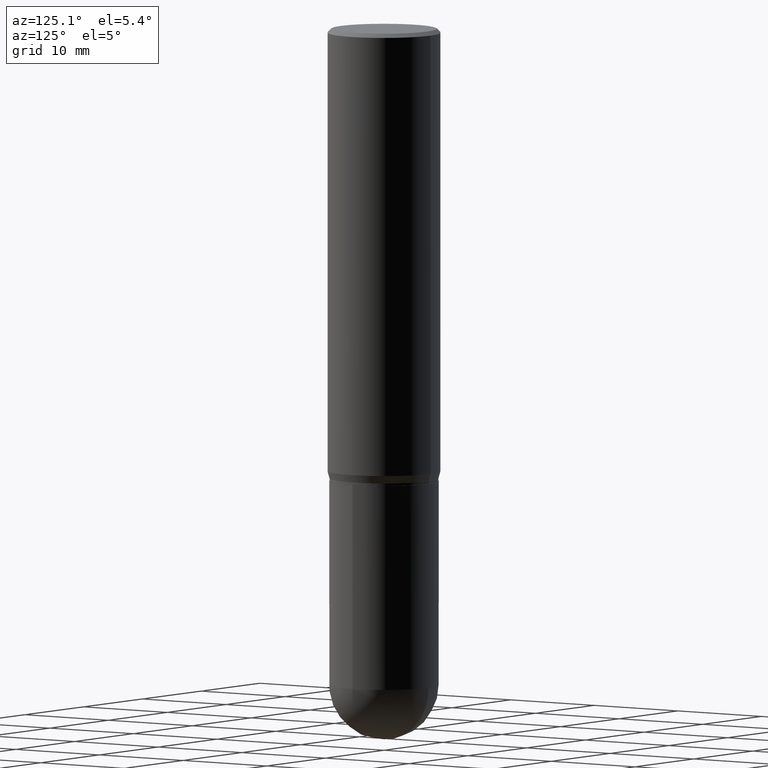
[diagram: clean part render]
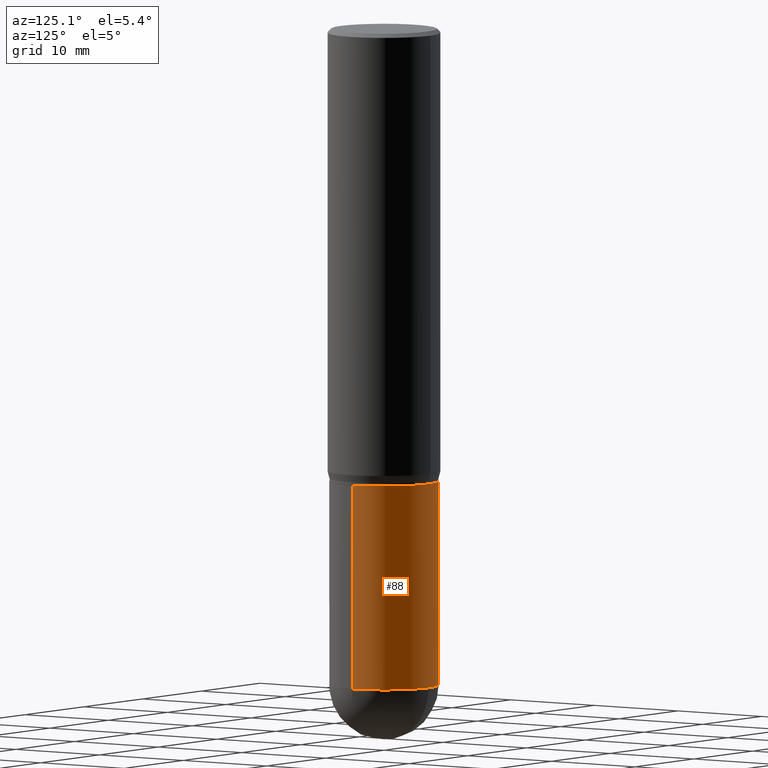
[diagram: same view with one face highlighted and labeled with its STEP entity id]
A machine part, auxiliary view. The second image highlights one B-rep face of the part: STEP entity #88.
In plain terms, the highlighted cylindrical surface (partial cylindrical patch) has radius 5.3581 mm, axis along (-0, 0, 1).
Its self-contained STEP definition (entity closure, byte-faithful):
#8 = AXIS2_PLACEMENT_3D ( 'NONE', #244, #126, #11 ) ;
#11 = DIRECTION ( 'NONE',  ( 1.000000000000000000, -6.982962677686265133E-15, 0.000000000000000000 ) ) ;
#31 = VECTOR ( 'NONE', #373, 39.37007874015748143 ) ;
#42 = FACE_OUTER_BOUND ( 'NONE', #189, .T. ) ;
#57 = ORIENTED_EDGE ( 'NONE', *, *, #488, .F. ) ;
#84 = DIRECTION ( 'NONE',  ( 1.000000000000000000, -6.982962677686265922E-15, 4.876176775795935793E-29 ) ) ;
#88 = ADVANCED_FACE ( 'NONE', ( #42 ), #116, .T. ) ;
#102 = CIRCLE ( 'NONE', #318, 0.2109499999999999986 ) ;
#116 = CYLINDRICAL_SURFACE ( 'NONE', #245, 0.2109500000000000541 ) ;
#118 = DIRECTION ( 'NONE',  ( -2.445468806185136877E-29, 3.491481338843145188E-15, 1.000000000000000000 ) ) ;
#126 = DIRECTION ( 'NONE',  ( -2.445468806185136597E-29, 3.491481338843145583E-15, 1.000000000000000000 ) ) ;
#153 = CARTESIAN_POINT ( 'NONE',  ( 0.2109499999999999986, -7.583148319833423025E-15, -1.750000000000000000 ) ) ;
#182 = VERTEX_POINT ( 'NONE', #153 ) ;
#184 = EDGE_CURVE ( 'NONE', #455, #247, #203, .T. ) ;
#189 = EDGE_LOOP ( 'NONE', ( #306, #221, #57, #484, #424 ) ) ;
#201 = DIRECTION ( 'NONE',  ( -2.445468806185136597E-29, 3.491481338843145583E-15, 1.000000000000000000 ) ) ;
#203 = CIRCLE ( 'NONE', #486, 0.2109500000000000541 ) ;
#205 = EDGE_CURVE ( 'NONE', #247, #394, #280, .T. ) ;
#221 = ORIENTED_EDGE ( 'NONE', *, *, #232, .T. ) ;
#232 = EDGE_CURVE ( 'NONE', #394, #331, #445, .T. ) ;
#235 = CARTESIAN_POINT ( 'NONE',  ( 0.2109500000000000541, -8.960624995040515044E-15, -2.539050000000000473 ) ) ;
#237 = DIRECTION ( 'NONE',  ( 1.000000000000000000, -6.982962677686265133E-15, 0.000000000000000000 ) ) ;
#244 = CARTESIAN_POINT ( 'NONE',  ( 6.209167572344372023E-29, -8.865045693389689499E-15, -2.539050000000000473 ) ) ;
#245 = AXIS2_PLACEMENT_3D ( 'NONE', #277, #201, #84 ) ;
#247 = VERTEX_POINT ( 'NONE', #325 ) ;
#252 = CARTESIAN_POINT ( 'NONE',  ( -0.2109500000000000541, 1.498889901085931727E-15, -1.037649357289272662E-29 ) ) ;
#277 = CARTESIAN_POINT ( 'NONE',  ( 0.000000000000000000, 0.000000000000000000, 0.000000000000000000 ) ) ;
#280 = CIRCLE ( 'NONE', #8, 0.2109500000000000541 ) ;
#298 = VECTOR ( 'NONE', #118, 39.37007874015748143 ) ;
#306 = ORIENTED_EDGE ( 'NONE', *, *, #205, .T. ) ;
#309 = CARTESIAN_POINT ( 'NONE',  ( 4.279570410823988484E-29, -6.110092342975504671E-15, -1.750000000000000000 ) ) ;
#317 = CARTESIAN_POINT ( 'NONE',  ( 6.209167572344372023E-29, -8.865045693389689499E-15, -2.539050000000000473 ) ) ;
#318 = AXIS2_PLACEMENT_3D ( 'NONE', #309, #429, #415 ) ;
#325 = CARTESIAN_POINT ( 'NONE',  ( 1.473055976857980082E-15, 0.2109499999999912001, -2.539050000000000917 ) ) ;
#331 = VERTEX_POINT ( 'NONE', #492 ) ;
#342 = CARTESIAN_POINT ( 'NONE',  ( -0.2109500000000000541, -5.988679117096665555E-15, -2.539050000000000473 ) ) ;
#373 = DIRECTION ( 'NONE',  ( -2.445468806185136877E-29, 3.491481338843145188E-15, 1.000000000000000000 ) ) ;
#394 = VERTEX_POINT ( 'NONE', #342 ) ;
#404 = EDGE_CURVE ( 'NONE', #455, #182, #446, .T. ) ;
#415 = DIRECTION ( 'NONE',  ( 1.000000000000000000, -6.982962677686266711E-15, 0.000000000000000000 ) ) ;
#424 = ORIENTED_EDGE ( 'NONE', *, *, #184, .T. ) ;
#429 = DIRECTION ( 'NONE',  ( -2.445468806185136597E-29, 3.491481338843145583E-15, 1.000000000000000000 ) ) ;
#445 = LINE ( 'NONE', #252, #298 ) ;
#446 = LINE ( 'NONE', #448, #31 ) ;
#448 = CARTESIAN_POINT ( 'NONE',  ( 0.2109500000000000541, -1.473055976857918157E-15, 1.028629490854152908E-29 ) ) ;
#455 = VERTEX_POINT ( 'NONE', #235 ) ;
#470 = DIRECTION ( 'NONE',  ( -2.445468806185136597E-29, 3.491481338843145583E-15, 1.000000000000000000 ) ) ;
#484 = ORIENTED_EDGE ( 'NONE', *, *, #404, .F. ) ;
#486 = AXIS2_PLACEMENT_3D ( 'NONE', #317, #470, #237 ) ;
#488 = EDGE_CURVE ( 'NONE', #182, #331, #102, .T. ) ;
#492 = CARTESIAN_POINT ( 'NONE',  ( -0.2109499999999999986, -5.988679117096665555E-15, -1.750000000000000000 ) ) ;